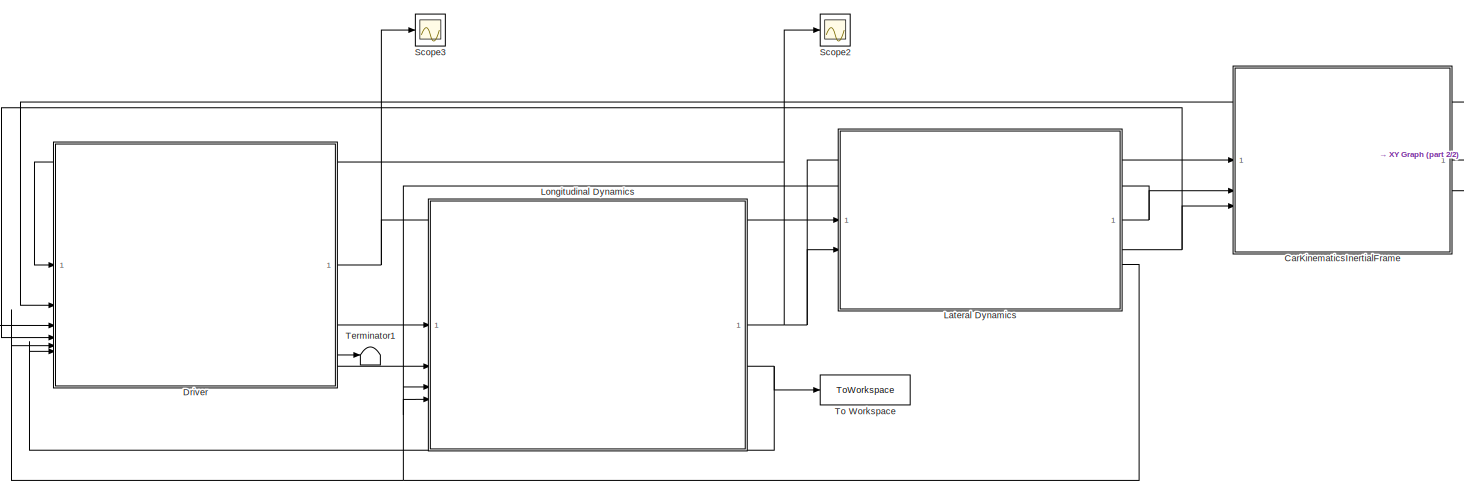
[diagram: root canvas - part 1/2, most of the canvas]
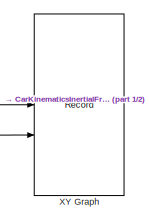
[diagram: root canvas - part 2/2, middle right region]
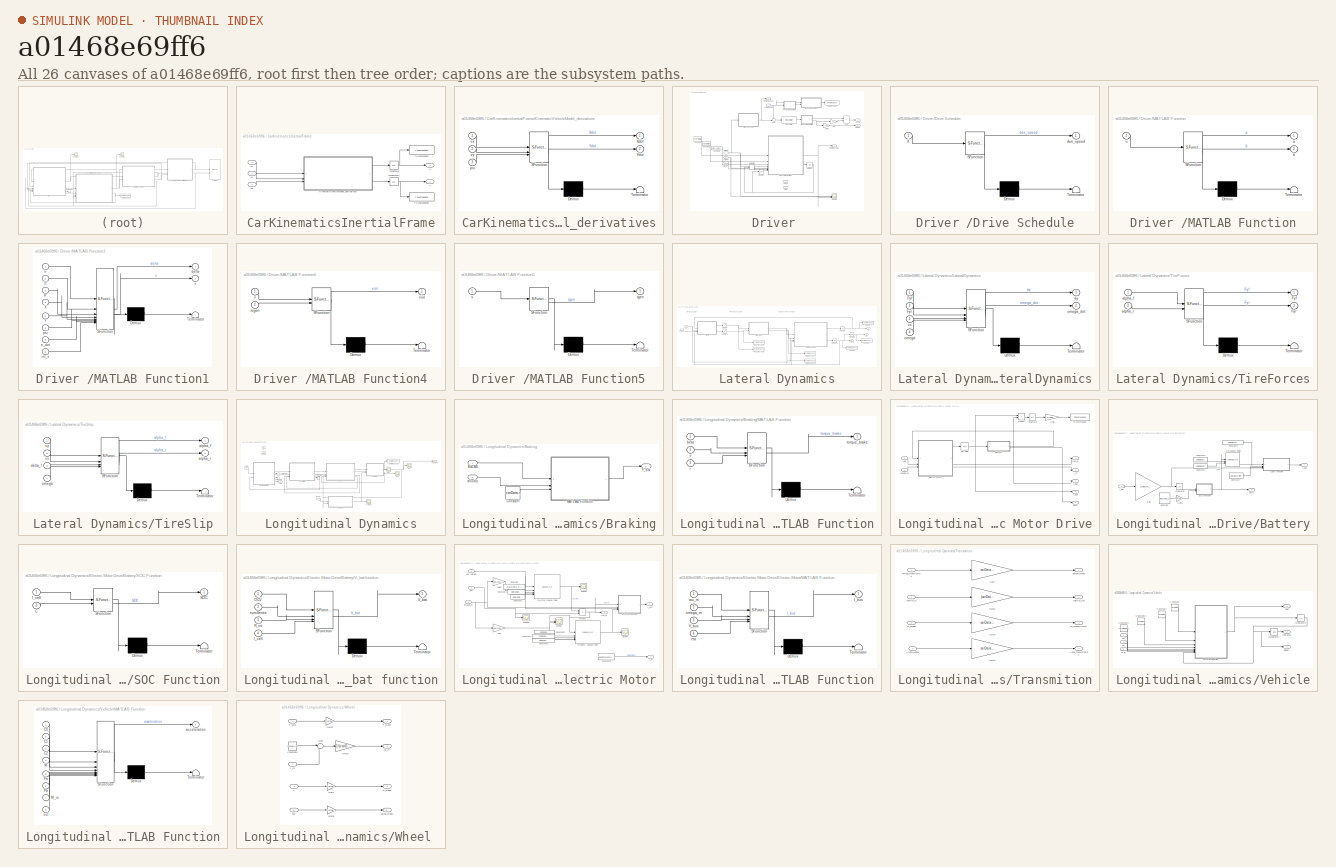
[diagram: thumbnail index - all 26 canvases of the model, root first then tree order]
MODEL slx_a01468e69ff6
KIND model
CONFIG AbsTol = auto
CONFIG EnableMultiTasking = off
CONFIG FixedStep = auto
CONFIG MaxStep = 5.0
CONFIG MinStep = auto
CONFIG RelTol = 1e-3
CONFIG SampleTimeConstraint = Unconstrained
CONFIG SolverName = ode45
CONFIG StartTime = 0.0
CONFIG StopTime = 3600
BLOCK [SubSystem] CarKinematicsInertialFrame
BLOCK [Integrator] CarKinematicsInertialFrame/Integrator
  InitialCondition = carData.init.X0
BLOCK [Integrator] CarKinematicsInertialFrame/Integrator1
  InitialCondition = carData.init.Y0
BLOCK [SubSystem] CarKinematicsInertialFrame/KinematicVehicleModel_derivatives
  ErrorFcn = Stateflow.Translate.translate
  PermitHierarchicalResolution = ExplicitOnly
  SFBlockType = MATLAB Function
  TreatAsAtomicUnit = on
BLOCK [Demux] CarKinematicsInertialFrame/KinematicVehicleModel_derivatives/ Demux 
  Outputs = 1
BLOCK [S-Function] CarKinematicsInertialFrame/KinematicVehicleModel_derivatives/ SFunction 
  EnableBusSupport = on
  FunctionName = sf_sfun
  PortCounts = [3 3]
  SFcnIsStateOwnerBlock = off
  SFunctionDeploymentMode = off
  Tag = Stateflow S-Function 13
BLOCK [Terminator] CarKinematicsInertialFrame/KinematicVehicleModel_derivatives/ Terminator 
BLOCK [Outport] CarKinematicsInertialFrame/KinematicVehicleModel_derivatives/Xdot
BLOCK [Outport] CarKinematicsInertialFrame/KinematicVehicleModel_derivatives/Ydot
  Port = 2
BLOCK [Inport] CarKinematicsInertialFrame/KinematicVehicleModel_derivatives/psi
  Port = 3
BLOCK [Inport] CarKinematicsInertialFrame/KinematicVehicleModel_derivatives/vx
BLOCK [Inport] CarKinematicsInertialFrame/KinematicVehicleModel_derivatives/vy
  Port = 2
BLOCK [ToWorkspace] CarKinematicsInertialFrame/To Workspace
  FixptAsFi = on
  MaxDataPoints = inf
  SampleTime = -1
  SaveFormat = Structure With Time
  VariableName = X
BLOCK [ToWorkspace] CarKinematicsInertialFrame/To Workspace1
  FixptAsFi = on
  MaxDataPoints = inf
  SampleTime = -1
  SaveFormat = Structure With Time
  VariableName = Y
BLOCK [Outport] CarKinematicsInertialFrame/X
BLOCK [Outport] CarKinematicsInertialFrame/Y
  Port = 2
BLOCK [Inport] CarKinematicsInertialFrame/psi
  Port = 3
BLOCK [Inport] CarKinematicsInertialFrame/vx
BLOCK [Inport] CarKinematicsInertialFrame/vy
  Port = 2
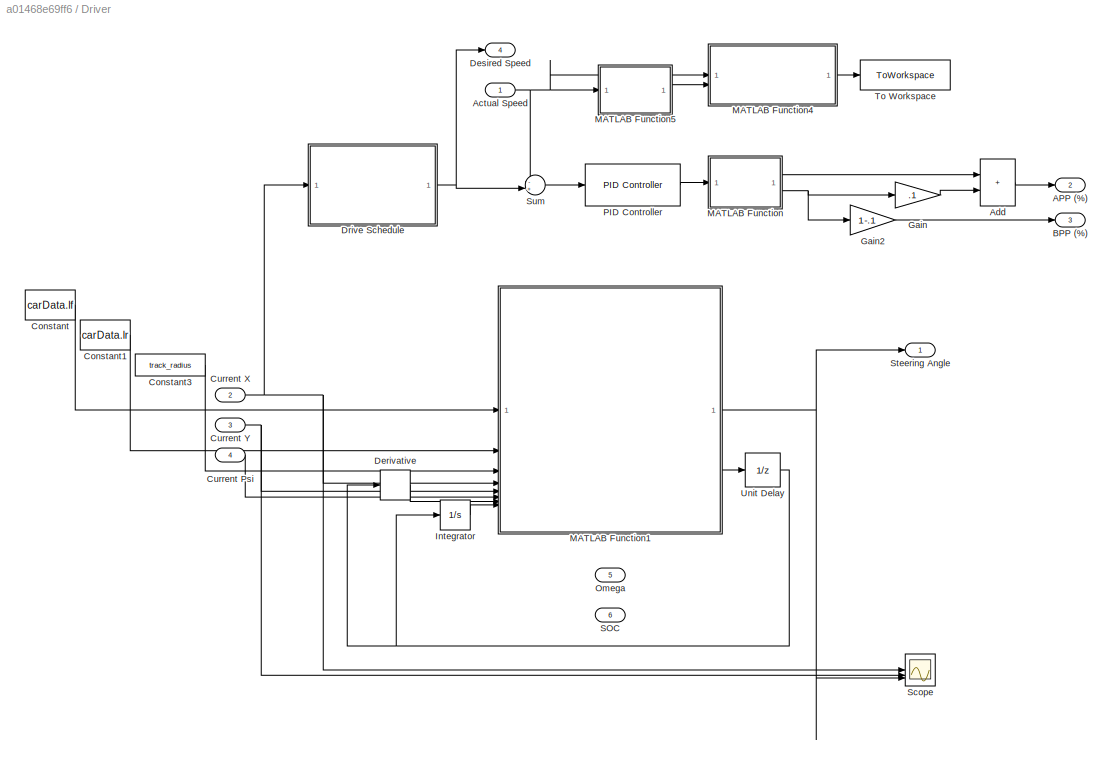
BLOCK [SubSystem] Driver 
BLOCK [Outport] Driver /APP (%)
  Port = 2
BLOCK [Inport] Driver /Actual Speed
BLOCK [Sum] Driver /Add
  IconShape = rectangular
BLOCK [Outport] Driver /BPP (%) 
  Port = 3
BLOCK [Constant] Driver /Constant
  Value = carData.lf
BLOCK [Constant] Driver /Constant1
  Value = carData.lr
BLOCK [Constant] Driver /Constant3
  Value = track_radius
BLOCK [Inport] Driver /Current Psi
  Port = 4
BLOCK [Inport] Driver /Current X
  Port = 2
BLOCK [Inport] Driver /Current Y
  Port = 3
BLOCK [Derivative] Driver /Derivative
BLOCK [Outport] Driver /Desired Speed
  Port = 4
BLOCK [SubSystem] Driver /Drive Schedule
  ErrorFcn = Stateflow.Translate.translate
  PermitHierarchicalResolution = ExplicitOnly
  SFBlockType = MATLAB Function
  TreatAsAtomicUnit = on
BLOCK [Demux] Driver /Drive Schedule/ Demux 
  Outputs = 1
BLOCK [S-Function] Driver /Drive Schedule/ SFunction 
  EnableBusSupport = on
  FunctionName = sf_sfun
  PortCounts = [1 2]
  SFcnIsStateOwnerBlock = off
  SFunctionDeploymentMode = off
  Tag = Stateflow S-Function 9
BLOCK [Terminator] Driver /Drive Schedule/ Terminator 
BLOCK [Inport] Driver /Drive Schedule/X
BLOCK [Outport] Driver /Drive Schedule/des_speed
BLOCK [Gain] Driver /Gain
  Gain = .1
BLOCK [Gain] Driver /Gain2
  Gain = 1-.1
BLOCK [Integrator] Driver /Integrator
BLOCK [SubSystem] Driver /MATLAB Function
  ErrorFcn = Stateflow.Translate.translate
  PermitHierarchicalResolution = ExplicitOnly
  SFBlockType = MATLAB Function
  TreatAsAtomicUnit = on
BLOCK [Demux] Driver /MATLAB Function/ Demux 
  Outputs = 1
BLOCK [S-Function] Driver /MATLAB Function/ SFunction 
  EnableBusSupport = on
  FunctionName = sf_sfun
  PortCounts = [1 3]
  SFcnIsStateOwnerBlock = off
  SFunctionDeploymentMode = off
  Tag = Stateflow S-Function 17
BLOCK [Terminator] Driver /MATLAB Function/ Terminator 
BLOCK [Outport] Driver /MATLAB Function/a
BLOCK [Outport] Driver /MATLAB Function/b
  Port = 2
BLOCK [Inport] Driver /MATLAB Function/u
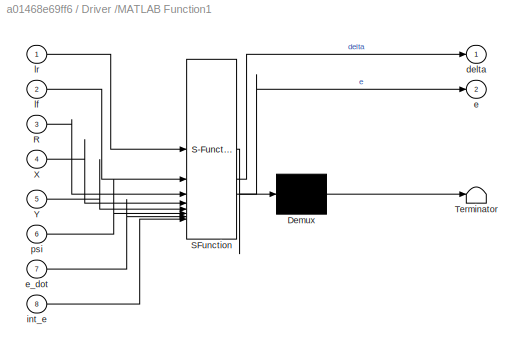
BLOCK [SubSystem] Driver /MATLAB Function1
  ErrorFcn = Stateflow.Translate.translate
  PermitHierarchicalResolution = ExplicitOnly
  SFBlockType = MATLAB Function
  TreatAsAtomicUnit = on
BLOCK [Demux] Driver /MATLAB Function1/ Demux 
  Outputs = 1
BLOCK [S-Function] Driver /MATLAB Function1/ SFunction 
  EnableBusSupport = on
  FunctionName = sf_sfun
  PortCounts = [8 3]
  SFcnIsStateOwnerBlock = off
  SFunctionDeploymentMode = off
  Tag = Stateflow S-Function 4
BLOCK [Terminator] Driver /MATLAB Function1/ Terminator 
BLOCK [Inport] Driver /MATLAB Function1/R
  Port = 3
BLOCK [Inport] Driver /MATLAB Function1/X
  Port = 4
BLOCK [Inport] Driver /MATLAB Function1/Y
  Port = 5
BLOCK [Outport] Driver /MATLAB Function1/delta
BLOCK [Outport] Driver /MATLAB Function1/e
  Port = 2
BLOCK [Inport] Driver /MATLAB Function1/e_dot
  Port = 7
BLOCK [Inport] Driver /MATLAB Function1/int_e
  Port = 8
BLOCK [Inport] Driver /MATLAB Function1/lf
  Port = 2
BLOCK [Inport] Driver /MATLAB Function1/lr
BLOCK [Inport] Driver /MATLAB Function1/psi
  Port = 6
BLOCK [SubSystem] Driver /MATLAB Function4
  ErrorFcn = Stateflow.Translate.translate
  PermitHierarchicalResolution = ExplicitOnly
  SFBlockType = MATLAB Function
  TreatAsAtomicUnit = on
BLOCK [Demux] Driver /MATLAB Function4/ Demux 
  Outputs = 1
BLOCK [S-Function] Driver /MATLAB Function4/ SFunction 
  EnableBusSupport = on
  FunctionName = sf_sfun
  PortCounts = [2 2]
  SFcnIsStateOwnerBlock = off
  SFunctionDeploymentMode = off
  Tag = Stateflow S-Function 11
BLOCK [Terminator] Driver /MATLAB Function4/ Terminator 
BLOCK [Inport] Driver /MATLAB Function4/regen
  Port = 2
BLOCK [Inport] Driver /MATLAB Function4/v
BLOCK [Outport] Driver /MATLAB Function4/viol
BLOCK [SubSystem] Driver /MATLAB Function5
  ErrorFcn = Stateflow.Translate.translate
  PermitHierarchicalResolution = ExplicitOnly
  SFBlockType = MATLAB Function
  TreatAsAtomicUnit = on
BLOCK [Demux] Driver /MATLAB Function5/ Demux 
  Outputs = 1
BLOCK [S-Function] Driver /MATLAB Function5/ SFunction 
  EnableBusSupport = on
  FunctionName = sf_sfun
  PortCounts = [1 2]
  SFcnIsStateOwnerBlock = off
  SFunctionDeploymentMode = off
  Tag = Stateflow S-Function 12
BLOCK [Terminator] Driver /MATLAB Function5/ Terminator 
BLOCK [Outport] Driver /MATLAB Function5/rgen
BLOCK [Inport] Driver /MATLAB Function5/v
BLOCK [Inport] Driver /Omega
  Port = 5
BLOCK [Reference] Driver /PID Controller  REF=slpidlib/PID Controller
  SourceBlock = slpidlib/PID Controller
  SourceType = PID 1dof
BLOCK [Inport] Driver /SOC
  Port = 6
BLOCK [Scope] Driver /Scope
  Floating = off
  NumInputPorts = 3
  ScopeSpecificationString = Simulink.scopes.TimeScopeBlockCfg('CurrentConfiguration', extmgr.ConfigurationSet(extmgr.Configuration('Core','General UI',true),extmgr.Configuration('Core','Source UI',true),extmgr.Configuration('Sources','WiredSimulink',true,'DataLoggingVariableName','ScopeData3'),extmgr.Configuration('Visuals','Time Domain',true,'SerializedDisplays',{struct('MinYLimReal','-366.83855','MaxYLimReal','1266.87312',...<+2834ch>
BLOCK [Outport] Driver /Steering Angle
BLOCK [Sum] Driver /Sum
  Inputs = -+|
BLOCK [ToWorkspace] Driver /To Workspace
  FixptAsFi = on
  MaxDataPoints = inf
  SampleTime = -1
  SaveFormat = Timeseries
  VariableName = F_brk
BLOCK [UnitDelay] Driver /Unit Delay
  HasFrameUpgradeWarning = on
  SampleTime = -1
BLOCK [SubSystem] Lateral Dynamics
BLOCK [ToWorkspace] Lateral Dynamics/Front_Slip_Angle
  FixptAsFi = on
  MaxDataPoints = inf
  SampleTime = -1
  SaveFormat = Timeseries
  VariableName = alpha_f
BLOCK [ToWorkspace] Lateral Dynamics/Heading
  FixptAsFi = on
  MaxDataPoints = inf
  SampleTime = -1
  SaveFormat = Timeseries
  VariableName = psi
BLOCK [Integrator] Lateral Dynamics/Integrator
  InitialCondition = carData.init.vy0
BLOCK [Integrator] Lateral Dynamics/Integrator1
  InitialCondition = carData.init.omega0
BLOCK [Integrator] Lateral Dynamics/Integrator2
  InitialCondition = carData.init.psi0
BLOCK [SubSystem] Lateral Dynamics/LateralDynamics
  ErrorFcn = Stateflow.Translate.translate
  PermitHierarchicalResolution = ExplicitOnly
  SFBlockType = MATLAB Function
  TreatAsAtomicUnit = on
BLOCK [Demux] Lateral Dynamics/LateralDynamics/ Demux 
  Outputs = 1
BLOCK [S-Function] Lateral Dynamics/LateralDynamics/ SFunction 
  EnableBusSupport = on
  FunctionName = sf_sfun
  Parameters = obj
  PortCounts = [4 3]
  SFcnIsStateOwnerBlock = off
  SFunctionDeploymentMode = off
  Tag = Stateflow S-Function 14
BLOCK [Terminator] Lateral Dynamics/LateralDynamics/ Terminator 
BLOCK [Inport] Lateral Dynamics/LateralDynamics/Fyf
BLOCK [Inport] Lateral Dynamics/LateralDynamics/Fyr
  Port = 2
BLOCK [Outport] Lateral Dynamics/LateralDynamics/ay
BLOCK [Inport] Lateral Dynamics/LateralDynamics/omega
  Port = 4
BLOCK [Outport] Lateral Dynamics/LateralDynamics/omega_dot
  Port = 2
BLOCK [Inport] Lateral Dynamics/LateralDynamics/vx
  Port = 3
BLOCK [ToWorkspace] Lateral Dynamics/Rear_Slip_Angle
  FixptAsFi = on
  MaxDataPoints = inf
  SampleTime = -1
  SaveFormat = Timeseries
  VariableName = alpha_r
BLOCK [Saturate] Lateral Dynamics/Saturation
  LowerLimit = -carData.maxAlpha
  UpperLimit = carData.maxAlpha
BLOCK [Saturate] Lateral Dynamics/Saturation1
  LowerLimit = -carData.maxAlpha
  UpperLimit = carData.maxAlpha
BLOCK [SubSystem] Lateral Dynamics/TireForces
  ErrorFcn = Stateflow.Translate.translate
  PermitHierarchicalResolution = ExplicitOnly
  SFBlockType = MATLAB Function
  TreatAsAtomicUnit = on
BLOCK [Demux] Lateral Dynamics/TireForces/ Demux 
  Outputs = 1
BLOCK [S-Function] Lateral Dynamics/TireForces/ SFunction 
  EnableBusSupport = on
  FunctionName = sf_sfun
  Parameters = obj
  PortCounts = [2 3]
  SFcnIsStateOwnerBlock = off
  SFunctionDeploymentMode = off
  Tag = Stateflow S-Function 15
BLOCK [Terminator] Lateral Dynamics/TireForces/ Terminator 
BLOCK [Outport] Lateral Dynamics/TireForces/Fyf
BLOCK [Outport] Lateral Dynamics/TireForces/Fyr
  Port = 2
BLOCK [Inport] Lateral Dynamics/TireForces/alpha_f
BLOCK [Inport] Lateral Dynamics/TireForces/alpha_r
  Port = 2
BLOCK [SubSystem] Lateral Dynamics/TireSlip
  ErrorFcn = Stateflow.Translate.translate
  PermitHierarchicalResolution = ExplicitOnly
  SFBlockType = MATLAB Function
  TreatAsAtomicUnit = on
BLOCK [Demux] Lateral Dynamics/TireSlip/ Demux 
  Outputs = 1
BLOCK [S-Function] Lateral Dynamics/TireSlip/ SFunction 
  EnableBusSupport = on
  FunctionName = sf_sfun
  Parameters = obj
  PortCounts = [4 3]
  SFcnIsStateOwnerBlock = off
  SFunctionDeploymentMode = off
  Tag = Stateflow S-Function 16
BLOCK [Terminator] Lateral Dynamics/TireSlip/ Terminator 
BLOCK [Outport] Lateral Dynamics/TireSlip/alpha_f
BLOCK [Outport] Lateral Dynamics/TireSlip/alpha_r
  Port = 2
BLOCK [Inport] Lateral Dynamics/TireSlip/delta_f
  Port = 3
BLOCK [Inport] Lateral Dynamics/TireSlip/omega
  Port = 4
BLOCK [Inport] Lateral Dynamics/TireSlip/vx
  Port = 2
BLOCK [Inport] Lateral Dynamics/TireSlip/vy
BLOCK [ToWorkspace] Lateral Dynamics/To Workspace5
  FixptAsFi = on
  MaxDataPoints = inf
  SampleTime = -1
  SaveFormat = Timeseries
  VariableName = Fyf
BLOCK [ToWorkspace] Lateral Dynamics/To Workspace6
  FixptAsFi = on
  MaxDataPoints = inf
  SampleTime = -1
  SaveFormat = Timeseries
  VariableName = Fyr
BLOCK [ToWorkspace] Lateral Dynamics/Velocity_Y
  FixptAsFi = on
  MaxDataPoints = inf
  SampleTime = -1
  SaveFormat = Timeseries
  VariableName = vy
BLOCK [ToWorkspace] Lateral Dynamics/Yaw Rate
  FixptAsFi = on
  MaxDataPoints = inf
  SampleTime = -1
  SaveFormat = Timeseries
  VariableName = omega
BLOCK [Inport] Lateral Dynamics/delta_f
BLOCK [Outport] Lateral Dynamics/omega
  Port = 3
BLOCK [Outport] Lateral Dynamics/psi
  Port = 2
BLOCK [Inport] Lateral Dynamics/vx
  Port = 2
BLOCK [Outport] Lateral Dynamics/vy
BLOCK [SubSystem] Longitudinal Dynamics
BLOCK [Inport] Longitudinal Dynamics/APP(%)
BLOCK [Inport] Longitudinal Dynamics/BPP (%)
  Port = 2
BLOCK [SubSystem] Longitudinal Dynamics/Braking
BLOCK [Inport] Longitudinal Dynamics/Braking/BrkCMD 
BLOCK [Constant] Longitudinal Dynamics/Braking/Constant
  Value = carData.r
BLOCK [Outport] Longitudinal Dynamics/Braking/F_brk 
  VectorParamsAs1DForOutWhenUnconnected = off
BLOCK [SubSystem] Longitudinal Dynamics/Braking/MATLAB Function
  ErrorFcn = Stateflow.Translate.translate
  PermitHierarchicalResolution = ExplicitOnly
  SFBlockType = MATLAB Function
  TreatAsAtomicUnit = on
BLOCK [Demux] Longitudinal Dynamics/Braking/MATLAB Function/ Demux 
  Outputs = 1
BLOCK [S-Function] Longitudinal Dynamics/Braking/MATLAB Function/ SFunction 
  EnableBusSupport = on
  FunctionName = sf_sfun
  PortCounts = [3 2]
  SFcnIsStateOwnerBlock = off
  SFunctionDeploymentMode = off
  Tag = Stateflow S-Function 5
BLOCK [Terminator] Longitudinal Dynamics/Braking/MATLAB Function/ Terminator 
BLOCK [Inport] Longitudinal Dynamics/Braking/MATLAB Function/beta
BLOCK [Inport] Longitudinal Dynamics/Braking/MATLAB Function/r
  Port = 3
BLOCK [Outport] Longitudinal Dynamics/Braking/MATLAB Function/torque_brake
BLOCK [Inport] Longitudinal Dynamics/Braking/MATLAB Function/v
  Port = 2
BLOCK [Inport] Longitudinal Dynamics/Braking/velocity 
  Port = 2
BLOCK [SubSystem] Longitudinal Dynamics/Electric Motor Drive
BLOCK [Inport] Longitudinal Dynamics/Electric Motor Drive/APP
BLOCK [SubSystem] Longitudinal Dynamics/Electric Motor Drive/Battery
BLOCK [Lookup_n-D] Longitudinal Dynamics/Electric Motor Drive/Battery/1-D Lookup Table
  BreakpointsForDimension1 = [-5:5]
  BreakpointsForDimension1Source = Input port
  InputPortMap = u0,p221,p5
  InternalRulePriority = Speed
  NumberOfTableDimensions = 1
  RndMeth = Simplest
  Table = tanh([-5:5])
  TableSource = Input port
BLOCK [Constant] Longitudinal Dynamics/Electric Motor Drive/Battery/Constant
  Value = batData.C
BLOCK [Constant] Longitudinal Dynamics/Electric Motor Drive/Battery/Constant1
  Value = batData.SOC
BLOCK [Constant] Longitudinal Dynamics/Electric Motor Drive/Battery/Constant2
  Value = batData.OCV
BLOCK [Constant] Longitudinal Dynamics/Electric Motor Drive/Battery/Constant3
  Value = batData.numSeries
BLOCK [Constant] Longitudinal Dynamics/Electric Motor Drive/Battery/Constant4
  Value = batData.Rint
BLOCK [Gain] Longitudinal Dynamics/Electric Motor Drive/Battery/Gain
  Gain = 1/batData.numParallel
BLOCK [Gain] Longitudinal Dynamics/Electric Motor Drive/Battery/Gain1
  Gain = 3600/batData.numParallel
BLOCK [Inport] Longitudinal Dynamics/Electric Motor Drive/Battery/I_bat
BLOCK [Integrator] Longitudinal Dynamics/Electric Motor Drive/Battery/Integrator
BLOCK [Outport] Longitudinal Dynamics/Electric Motor Drive/Battery/SOC
  Port = 2
BLOCK [SubSystem] Longitudinal Dynamics/Electric Motor Drive/Battery/SOC Function
  ErrorFcn = Stateflow.Translate.translate
  PermitHierarchicalResolution = ExplicitOnly
  SFBlockType = MATLAB Function
  TreatAsAtomicUnit = on
BLOCK [Demux] Longitudinal Dynamics/Electric Motor Drive/Battery/SOC Function/ Demux 
  Outputs = 1
BLOCK [S-Function] Longitudinal Dynamics/Electric Motor Drive/Battery/SOC Function/ SFunction 
  EnableBusSupport = on
  FunctionName = sf_sfun
  PortCounts = [2 2]
  SFcnIsStateOwnerBlock = off
  SFunctionDeploymentMode = off
  Tag = Stateflow S-Function 18
BLOCK [Terminator] Longitudinal Dynamics/Electric Motor Drive/Battery/SOC Function/ Terminator 
BLOCK [Inport] Longitudinal Dynamics/Electric Motor Drive/Battery/SOC Function/C
  Port = 2
BLOCK [Inport] Longitudinal Dynamics/Electric Motor Drive/Battery/SOC Function/I_cell
BLOCK [Outport] Longitudinal Dynamics/Electric Motor Drive/Battery/SOC Function/SOC
BLOCK [Outport] Longitudinal Dynamics/Electric Motor Drive/Battery/V_bat
BLOCK [SubSystem] Longitudinal Dynamics/Electric Motor Drive/Battery/V_bat function
  ErrorFcn = Stateflow.Translate.translate
  PermitHierarchicalResolution = ExplicitOnly
  SFBlockType = MATLAB Function
  TreatAsAtomicUnit = on
BLOCK [Demux] Longitudinal Dynamics/Electric Motor Drive/Battery/V_bat function/ Demux 
  Outputs = 1
BLOCK [S-Function] Longitudinal Dynamics/Electric Motor Drive/Battery/V_bat function/ SFunction 
  EnableBusSupport = on
  FunctionName = sf_sfun
  PortCounts = [4 2]
  SFcnIsStateOwnerBlock = off
  SFunctionDeploymentMode = off
  Tag = Stateflow S-Function 19
BLOCK [Terminator] Longitudinal Dynamics/Electric Motor Drive/Battery/V_bat function/ Terminator 
BLOCK [Inport] Longitudinal Dynamics/Electric Motor Drive/Battery/V_bat function/I_cell
  Port = 4
BLOCK [Inport] Longitudinal Dynamics/Electric Motor Drive/Battery/V_bat function/OCV
BLOCK [Inport] Longitudinal Dynamics/Electric Motor Drive/Battery/V_bat function/R_int
  Port = 3
BLOCK [Outport] Longitudinal Dynamics/Electric Motor Drive/Battery/V_bat function/V_bat
BLOCK [Inport] Longitudinal Dynamics/Electric Motor Drive/Battery/V_bat function/numSeries
  Port = 2
BLOCK [SubSystem] Longitudinal Dynamics/Electric Motor Drive/Electric Motor
BLOCK [Inport] Longitudinal Dynamics/Electric Motor Drive/Electric Motor/APP
  Port = 2
BLOCK [Inport] Longitudinal Dynamics/Electric Motor Drive/Electric Motor/Bus Voltage
BLOCK [Constant] Longitudinal Dynamics/Electric Motor Drive/Electric Motor/Constant
  Value = motorData.maxtorque
BLOCK [Constant] Longitudinal Dynamics/Electric Motor Drive/Electric Motor/Constant1
  Value = motorData.rpm
BLOCK [Constant] Longitudinal Dynamics/Electric Motor Drive/Electric Motor/Constant2
  Value = motorData.vbus
BLOCK [Constant] Longitudinal Dynamics/Electric Motor Drive/Electric Motor/Constant3
  Value = motorData.eta_val
BLOCK [Constant] Longitudinal Dynamics/Electric Motor Drive/Electric Motor/Constant4
  Value = motorData.eta_torque
BLOCK [Constant] Longitudinal Dynamics/Electric Motor Drive/Electric Motor/Constant5
  Value = motorData.eta_speed
BLOCK [Constant] Longitudinal Dynamics/Electric Motor Drive/Electric Motor/Constant6
  Value = motorData.Inertia
BLOCK [Gain] Longitudinal Dynamics/Electric Motor Drive/Electric Motor/Gain
  Gain = 60/(2*pi)
BLOCK [Gain] Longitudinal Dynamics/Electric Motor Drive/Electric Motor/Gain1
  Gain = 60/(2*pi)
BLOCK [Outport] Longitudinal Dynamics/Electric Motor Drive/Electric Motor/I_bus
BLOCK [Outport] Longitudinal Dynamics/Electric Motor Drive/Electric Motor/I_m
  Port = 3
BLOCK [SubSystem] Longitudinal Dynamics/Electric Motor Drive/Electric Motor/MATLAB Function
  ErrorFcn = Stateflow.Translate.translate
  PermitHierarchicalResolution = ExplicitOnly
  SFBlockType = MATLAB Function
  TreatAsAtomicUnit = on
BLOCK [Demux] Longitudinal Dynamics/Electric Motor Drive/Electric Motor/MATLAB Function/ Demux 
  Outputs = 1
BLOCK [S-Function] Longitudinal Dynamics/Electric Motor Drive/Electric Motor/MATLAB Function/ SFunction 
  EnableBusSupport = on
  FunctionName = sf_sfun
  PortCounts = [4 2]
  SFcnIsStateOwnerBlock = off
  SFunctionDeploymentMode = off
  Tag = Stateflow S-Function 20
BLOCK [Terminator] Longitudinal Dynamics/Electric Motor Drive/Electric Motor/MATLAB Function/ Terminator 
BLOCK [Outport] Longitudinal Dynamics/Electric Motor Drive/Electric Motor/MATLAB Function/I_bus
BLOCK [Inport] Longitudinal Dynamics/Electric Motor Drive/Electric Motor/MATLAB Function/V_bus
  Port = 3
BLOCK [Inport] Longitudinal Dynamics/Electric Motor Drive/Electric Motor/MATLAB Function/eta
  Port = 4
BLOCK [Inport] Longitudinal Dynamics/Electric Motor Drive/Electric Motor/MATLAB Function/omega_m
  Port = 2
BLOCK [Inport] Longitudinal Dynamics/Electric Motor Drive/Electric Motor/MATLAB Function/tau_m
BLOCK [Product] Longitudinal Dynamics/Electric Motor Drive/Electric Motor/Product
BLOCK [Scope] Longitudinal Dynamics/Electric Motor Drive/Electric Motor/Scope
  Floating = off
  NumInputPorts = 1
  ScopeSpecificationString = Simulink.scopes.TimeScopeBlockCfg('CurrentConfiguration', extmgr.ConfigurationSet(extmgr.Configuration('Core','General UI',true),extmgr.Configuration('Core','Source UI',true),extmgr.Configuration('Sources','WiredSimulink',true,'DataLoggingVariableName','ScopeData1'),extmgr.Configuration('Visuals','Time Domain',true,'SerializedDisplays',{struct('MinYLimReal','0.72514','MaxYLimReal','0.87372','YLabe...<+1477ch>
BLOCK [Scope] Longitudinal Dynamics/Electric Motor Drive/Electric Motor/Scope1
  Floating = off
  NumInputPorts = 2
  ScopeSpecificationString = Simulink.scopes.TimeScopeBlockCfg('CurrentConfiguration', extmgr.ConfigurationSet(extmgr.Configuration('Core','General UI',true),extmgr.Configuration('Core','Source UI',true),extmgr.Configuration('Sources','WiredSimulink',true,'DataLoggingVariableName','ScopeData2'),extmgr.Configuration('Visuals','Time Domain',true,'SerializedDisplays',{struct('MinYLimReal','-11.91551','MaxYLimReal','107.23963','Y...<+2135ch>
BLOCK [Scope] Longitudinal Dynamics/Electric Motor Drive/Electric Motor/Scope2
  Floating = off
  NumInputPorts = 1
  ScopeSpecificationString = Simulink.scopes.TimeScopeBlockCfg('CurrentConfiguration', extmgr.ConfigurationSet(extmgr.Configuration('Core','General UI',true),extmgr.Configuration('Core','Source UI',true),extmgr.Configuration('Sources','WiredSimulink',true,'DataLoggingVariableName','ScopeData3'),extmgr.Configuration('Visuals','Time Domain',true,'SerializedDisplays',{struct('MinYLimReal','0.1688','MaxYLimReal','0.71293','YLabel...<+1424ch>
BLOCK [Scope] Longitudinal Dynamics/Electric Motor Drive/Electric Motor/Scope3
  Floating = off
  NumInputPorts = 1
  ScopeSpecificationString = Simulink.scopes.TimeScopeBlockCfg('CurrentConfiguration', extmgr.ConfigurationSet(extmgr.Configuration('Core','General UI',true),extmgr.Configuration('Core','Source UI',true),extmgr.Configuration('Sources','WiredSimulink',true,'DataLoggingVariableName','ScopeData4'),extmgr.Configuration('Visuals','Time Domain',true,'SerializedDisplays',{struct('MinYLimReal','180.00000','MaxYLimReal','380.00000','Y...<+1380ch>
BLOCK [Lookup_n-D] Longitudinal Dynamics/Electric Motor Drive/Electric Motor/efficiency Lookup table
  BeginIndexSearchUsingPreviousIndexResult = on
  BreakpointsForDimension1 = [1:3]
  BreakpointsForDimension1Source = Input port
  BreakpointsForDimension2 = [1:3]
  BreakpointsForDimension2Source = Input port
  InputPortMap = u0,u1,p221,p5,p7
  InternalRulePriority = Speed
  RndMeth = Simplest
  TableSource = Input port
BLOCK [Inport] Longitudinal Dynamics/Electric Motor Drive/Electric Motor/omega_m
  Port = 3
BLOCK [Outport] Longitudinal Dynamics/Electric Motor Drive/Electric Motor/tau_m
  Port = 2
BLOCK [Lookup_n-D] Longitudinal Dynamics/Electric Motor Drive/Electric Motor/tau_max Lookup table
  BreakpointsForDimension1 = [1:3]
  BreakpointsForDimension1Source = Input port
  BreakpointsForDimension2 = [1:3]
  BreakpointsForDimension2Source = Input port
  InputPortMap = u0,u1,p221,p5,p7
  InternalRulePriority = Speed
  RndMeth = Simplest
  TableSource = Input port
BLOCK [Gain] Longitudinal Dynamics/Electric Motor Drive/Gain
  Gain = 1/1000
BLOCK [Outport] Longitudinal Dynamics/Electric Motor Drive/I_bat
  Port = 4
BLOCK [Outport] Longitudinal Dynamics/Electric Motor Drive/I_m
  Port = 2
BLOCK [Integrator] Longitudinal Dynamics/Electric Motor Drive/Integrator
BLOCK [Product] Longitudinal Dynamics/Electric Motor Drive/Product
BLOCK [Outport] Longitudinal Dynamics/Electric Motor Drive/SOC
  Port = 5
BLOCK [ToWorkspace] Longitudinal Dynamics/Electric Motor Drive/To Workspace
  FixptAsFi = on
  MaxDataPoints = inf
  SampleTime = -1
  SaveFormat = Timeseries
  VariableName = power
BLOCK [UnitDelay] Longitudinal Dynamics/Electric Motor Drive/Unit Delay
  HasFrameUpgradeWarning = on
  SampleTime = -1
BLOCK [Outport] Longitudinal Dynamics/Electric Motor Drive/V_bat
  Port = 3
BLOCK [Inport] Longitudinal Dynamics/Electric Motor Drive/omega_m
  Port = 2
BLOCK [Outport] Longitudinal Dynamics/Electric Motor Drive/tau_m
BLOCK [Scope] Longitudinal Dynamics/F_brake
  Floating = off
  NumInputPorts = 1
  ScopeSpecificationString = Simulink.scopes.TimeScopeBlockCfg('CurrentConfiguration', extmgr.ConfigurationSet(extmgr.Configuration('Core','General UI',true),extmgr.Configuration('Core','Source UI',true),extmgr.Configuration('Sources','WiredSimulink',true,'DataLoggingVariableName','ScopeData7'),extmgr.Configuration('Visuals','Time Domain',true,'SerializedDisplays',{struct('MinYLimReal','-450.00000','MaxYLimReal','4050.00000',...<+1384ch>
BLOCK [Inport] Longitudinal Dynamics/Omega
  Port = 4
BLOCK [Outport] Longitudinal Dynamics/SOC
  Port = 2
BLOCK [Terminator] Longitudinal Dynamics/Terminator2
BLOCK [Terminator] Longitudinal Dynamics/Terminator3
BLOCK [Terminator] Longitudinal Dynamics/Terminator5
BLOCK [ToWorkspace] Longitudinal Dynamics/To Workspace
  FixptAsFi = on
  MaxDataPoints = inf
  SampleTime = -1
  SaveFormat = Timeseries
  VariableName = vel1
BLOCK [SubSystem] Longitudinal Dynamics/Transmition
BLOCK [Outport] Longitudinal Dynamics/Transmition/Alpha_Transmission
  Port = 4
BLOCK [Inport] Longitudinal Dynamics/Transmition/Alpha_Wheel
  Port = 4
BLOCK [Gain] Longitudinal Dynamics/Transmition/Gain
  Gain = carData.FDG
BLOCK [Gain] Longitudinal Dynamics/Transmition/Gain1
  Gain = (carData.FDG)^2
BLOCK [Gain] Longitudinal Dynamics/Transmition/Gain2
  Gain = carData.FDG
BLOCK [Gain] Longitudinal Dynamics/Transmition/Gain3
  Gain = carData.FDG
BLOCK [Inport] Longitudinal Dynamics/Transmition/Inertia_In
  Port = 2
BLOCK [Outport] Longitudinal Dynamics/Transmition/Inertia_Out
  Port = 2
BLOCK [Inport] Longitudinal Dynamics/Transmition/Torque_Tranmission
BLOCK [Outport] Longitudinal Dynamics/Transmition/Torque_Wheel
BLOCK [Outport] Longitudinal Dynamics/Transmition/W_Transmission
  Port = 3
BLOCK [Inport] Longitudinal Dynamics/Transmition/W_Wheel
  Port = 3
BLOCK [SubSystem] Longitudinal Dynamics/Vehicle
BLOCK [Constant] Longitudinal Dynamics/Vehicle/Constant
  Value = carData.C0
BLOCK [Constant] Longitudinal Dynamics/Vehicle/Constant1
  Value = carData.C1
BLOCK [Constant] Longitudinal Dynamics/Vehicle/Constant2
  Value = carData.C2
BLOCK [Constant] Longitudinal Dynamics/Vehicle/Constant3
  Value = carData.Mass
BLOCK [Outport] Longitudinal Dynamics/Vehicle/Distance 
  Port = 2
  VectorParamsAs1DForOutWhenUnconnected = off
BLOCK [Inport] Longitudinal Dynamics/Vehicle/Fb 
  Port = 3
BLOCK [Inport] Longitudinal Dynamics/Vehicle/Fw 
BLOCK [Integrator] Longitudinal Dynamics/Vehicle/Integrator1
BLOCK [Integrator] Longitudinal Dynamics/Vehicle/Integrator2
  LimitOutput = on
  LowerSaturationLimit = 0
BLOCK [SubSystem] Longitudinal Dynamics/Vehicle/MATLAB Function
  ErrorFcn = Stateflow.Translate.translate
  PermitHierarchicalResolution = ExplicitOnly
  SFBlockType = MATLAB Function
  TreatAsAtomicUnit = on
BLOCK [Demux] Longitudinal Dynamics/Vehicle/MATLAB Function/ Demux 
  Outputs = 1
BLOCK [S-Function] Longitudinal Dynamics/Vehicle/MATLAB Function/ SFunction 
  EnableBusSupport = on
  FunctionName = sf_sfun
  PortCounts = [8 2]
  SFcnIsStateOwnerBlock = off
  SFunctionDeploymentMode = off
  Tag = Stateflow S-Function 21
BLOCK [Terminator] Longitudinal Dynamics/Vehicle/MATLAB Function/ Terminator 
BLOCK [Inport] Longitudinal Dynamics/Vehicle/MATLAB Function/C0
BLOCK [Inport] Longitudinal Dynamics/Vehicle/MATLAB Function/C1
  Port = 2
BLOCK [Inport] Longitudinal Dynamics/Vehicle/MATLAB Function/C2
  Port = 3
BLOCK [Inport] Longitudinal Dynamics/Vehicle/MATLAB Function/Fa
  Port = 5
BLOCK [Inport] Longitudinal Dynamics/Vehicle/MATLAB Function/Fb
  Port = 6
BLOCK [Inport] Longitudinal Dynamics/Vehicle/MATLAB Function/M
  Port = 4
BLOCK [Inport] Longitudinal Dynamics/Vehicle/MATLAB Function/M_in
  Port = 7
BLOCK [Outport] Longitudinal Dynamics/Vehicle/MATLAB Function/acceleration
  VectorParamsAs1DForOutWhenUnconnected = off
BLOCK [Inport] Longitudinal Dynamics/Vehicle/MATLAB Function/vel
  Port = 8
BLOCK [Inport] Longitudinal Dynamics/Vehicle/M_in 
  Port = 2
BLOCK [Outport] Longitudinal Dynamics/Vehicle/acc
  Port = 3
BLOCK [Outport] Longitudinal Dynamics/Vehicle/velocity 
  VectorParamsAs1DForOutWhenUnconnected = off
BLOCK [Outport] Longitudinal Dynamics/Velocity X 
BLOCK [Inport] Longitudinal Dynamics/Vy
  Port = 3
BLOCK [SubSystem] Longitudinal Dynamics/Wheel 
BLOCK [Constant] Longitudinal Dynamics/Wheel /Constant6
  Value = carData.Iw
BLOCK [Outport] Longitudinal Dynamics/Wheel /F_track
BLOCK [Gain] Longitudinal Dynamics/Wheel /Gain
  Gain = 1/carData.r
BLOCK [Gain] Longitudinal Dynamics/Wheel /Gain1
  Gain = 1/carData.r
BLOCK [Gain] Longitudinal Dynamics/Wheel /Gain2
  Gain = 1/carData.r
BLOCK [Gain] Longitudinal Dynamics/Wheel /Gain3
  Gain = 1/(carData.r*carData.r)
BLOCK [Inport] Longitudinal Dynamics/Wheel /I_in
  Port = 2
BLOCK [Outport] Longitudinal Dynamics/Wheel /M_in
  Port = 2
BLOCK [Sum] Longitudinal Dynamics/Wheel /Sum
  Inputs = |++
BLOCK [Inport] Longitudinal Dynamics/Wheel /T_axle
BLOCK [Inport] Longitudinal Dynamics/Wheel /V
  Port = 3
BLOCK [Inport] Longitudinal Dynamics/Wheel /acc
  Port = 4
BLOCK [Outport] Longitudinal Dynamics/Wheel /alpha_wheel
  Port = 4
BLOCK [Outport] Longitudinal Dynamics/Wheel /w_wheel
  Port = 3
BLOCK [Scope] Longitudinal Dynamics/acc
  Floating = off
  NumInputPorts = 1
  ScopeSpecificationString = Simulink.scopes.TimeScopeBlockCfg('CurrentConfiguration', extmgr.ConfigurationSet(extmgr.Configuration('Core','General UI',true),extmgr.Configuration('Core','Source UI',true),extmgr.Configuration('Sources','WiredSimulink',true,'DataLoggingVariableName','ScopeData8'),extmgr.Configuration('Visuals','Time Domain',true,'SerializedDisplays',{struct('MinYLimReal','-12.30056','MaxYLimReal','74.14815','YL...<+1385ch>
BLOCK [Scope] Longitudinal Dynamics/dist
  Floating = off
  NumInputPorts = 1
  ScopeSpecificationString = Simulink.scopes.TimeScopeBlockCfg('CurrentConfiguration', extmgr.ConfigurationSet(extmgr.Configuration('Core','General UI',true),extmgr.Configuration('Core','Source UI',true),extmgr.Configuration('Sources','WiredSimulink',true,'DataLoggingVariableName','ScopeData9'),extmgr.Configuration('Visuals','Time Domain',true,'SerializedDisplays',{struct('MinYLimReal','-385.08236','MaxYLimReal','3465.74126',...<+1386ch>
BLOCK [Scope] Longitudinal Dynamics/vel
  Floating = off
  NumInputPorts = 1
  ScopeSpecificationString = Simulink.scopes.TimeScopeBlockCfg('CurrentConfiguration', extmgr.ConfigurationSet(extmgr.Configuration('Core','General UI',true),extmgr.Configuration('Core','Source UI',true),extmgr.Configuration('Sources','WiredSimulink',true,'DataLoggingVariableName','ScopeData10'),extmgr.Configuration('Visuals','Time Domain',true,'SerializedDisplays',{struct('MinYLimReal','-3.04417','MaxYLimReal','27.39754','YL...<+1408ch>
BLOCK [Scope] Scope2
  Floating = off
  NumInputPorts = 1
  ScopeSpecificationString = Simulink.scopes.TimeScopeBlockCfg('CurrentConfiguration', extmgr.ConfigurationSet(extmgr.Configuration('Core','General UI',true),extmgr.Configuration('Core','Source UI',true),extmgr.Configuration('Sources','WiredSimulink',true,'DataLoggingVariableName','ScopeData1'),extmgr.Configuration('Visuals','Time Domain',true,'SerializedDisplays',{struct('MinYLimReal','6.76744','MaxYLimReal','38.8747','YLabe...<+1439ch>
BLOCK [Scope] Scope3
  Floating = off
  NumInputPorts = 1
  ScopeSpecificationString = Simulink.scopes.TimeScopeBlockCfg('CurrentConfiguration', extmgr.ConfigurationSet(extmgr.Configuration('Core','General UI',true),extmgr.Configuration('Core','Source UI',true),extmgr.Configuration('Sources','WiredSimulink',true,'DataLoggingVariableName','ScopeData2'),extmgr.Configuration('Visuals','Time Domain',true,'SerializedDisplays',{struct('MinYLimReal','-0.00201','MaxYLimReal','0.0169','YLabe...<+1451ch>
BLOCK [Terminator] Terminator1
BLOCK [ToWorkspace] To Workspace
  FixptAsFi = on
  MaxDataPoints = inf
  SampleTime = -1
  SaveFormat = Timeseries
  VariableName = SOC
BLOCK [Record] XY Graph
  CompatibilityTag = XY
  FileSettingsInternal = {"entries":[{"content":{"excelSettings":{"content":{},"type":"Streamout.ExcelSettings"}},"type":"Streamout.FileSettingStorage","uuid":""}],"packageUris":["http:\/\/schema.mathworks.com\/mf0\/streamout_blocks\/R2020a"],"version":"1.0"}
  Layout = [1 1]
  SignalsInternal = {"entries":[{"content":{"signals":[{"content":{"blockPath":[],"dimensions":[1],"domain":"","lineColor":"#fe330a","port":1,"signalID":8,"signalName":"CarKinematicsInertialFrame1:1"},"type":"RecordBlkView.Signal","uuid":""},{"content":{"blockPath":[],"dimensions":[1],"domain":"","lineColor":"#22b573","port":2,"signalID":11,"signalName":"CarKinematicsInertialFrame1:2"},"type":"RecordBlkView.Signal","...<+155ch>
  VisualizationBindings = {"xyplotplugin":{"info":[{"series":[],"subplotID":1}]}}
  st = -1
ANNOTATION Lateral Dynamics: Lateral Dynamic Calculations
ANNOTATION Lateral Dynamics: Tire Force Calculation
ANNOTATION Lateral Dynamics: Tire Slip Calculation
NET CarKinematicsInertialFrame/Integrator1:1 -> CarKinematicsInertialFrame/To Workspace1:1, CarKinematicsInertialFrame/Y:1
NET CarKinematicsInertialFrame/Integrator:1 -> CarKinematicsInertialFrame/To Workspace:1, CarKinematicsInertialFrame/X:1
LINE CarKinematicsInertialFrame/KinematicVehicleModel_derivatives:1 -> CarKinematicsInertialFrame/Integrator:1
LINE CarKinematicsInertialFrame/KinematicVehicleModel_derivatives:2 -> CarKinematicsInertialFrame/Integrator1:1
LINE CarKinematicsInertialFrame/psi:1 -> CarKinematicsInertialFrame/KinematicVehicleModel_derivatives:3
LINE CarKinematicsInertialFrame/vx:1 -> CarKinematicsInertialFrame/KinematicVehicleModel_derivatives:1
LINE CarKinematicsInertialFrame/vy:1 -> CarKinematicsInertialFrame/KinematicVehicleModel_derivatives:2
NET CarKinematicsInertialFrame:1 -> Driver :2, XY Graph:1
NET CarKinematicsInertialFrame:2 -> Driver :3, XY Graph:2
NET Driver /Actual Speed:1 -> Driver /MATLAB Function4:1, Driver /MATLAB Function5:1, Driver /Sum:1
LINE Driver /Add:1 -> Driver /APP (%):1
LINE Driver /Constant1:1 -> Driver /MATLAB Function1:2
LINE Driver /Constant3:1 -> Driver /MATLAB Function1:3
LINE Driver /Constant:1 -> Driver /MATLAB Function1:1
LINE Driver /Current Psi:1 -> Driver /MATLAB Function1:6
NET Driver /Current X:1 -> Driver /Drive Schedule:1, Driver /MATLAB Function1:4, Driver /Scope:1
NET Driver /Current Y:1 -> Driver /MATLAB Function1:5, Driver /Scope:2
LINE Driver /Derivative:1 -> Driver /MATLAB Function1:7
NET Driver /Drive Schedule:1 -> Driver /Desired Speed:1, Driver /Sum:2
LINE Driver /Gain2:1 -> Driver /BPP (%) :1
LINE Driver /Gain:1 -> Driver /Add:2
LINE Driver /Integrator:1 -> Driver /MATLAB Function1:8
NET Driver /MATLAB Function1:1 -> Driver /Scope:3, Driver /Steering Angle:1
LINE Driver /MATLAB Function1:2 -> Driver /Unit Delay:1
LINE Driver /MATLAB Function4:1 -> Driver /To Workspace:1
LINE Driver /MATLAB Function5:1 -> Driver /MATLAB Function4:2
LINE Driver /MATLAB Function:1 -> Driver /Add:1
NET Driver /MATLAB Function:2 -> Driver /Gain2:1, Driver /Gain:1
LINE Driver /PID Controller:1 -> Driver /MATLAB Function:1
LINE Driver /Sum:1 -> Driver /PID Controller:1
NET Driver /Unit Delay:1 -> Driver /Derivative:1, Driver /Integrator:1
NET Driver :1 -> Lateral Dynamics:1, Scope3:1
LINE Driver :2 -> Longitudinal Dynamics:1
LINE Driver :3 -> Longitudinal Dynamics:2
LINE Driver :4 -> Terminator1:1
NET Lateral Dynamics/Integrator1:1 -> Lateral Dynamics/Integrator2:1, Lateral Dynamics/LateralDynamics:4, Lateral Dynamics/TireSlip:4, Lateral Dynamics/Yaw Rate:1, Lateral Dynamics/omega:1
NET Lateral Dynamics/Integrator2:1 -> Lateral Dynamics/Heading:1, Lateral Dynamics/psi:1
NET Lateral Dynamics/Integrator:1 -> Lateral Dynamics/TireSlip:1, Lateral Dynamics/Velocity_Y:1, Lateral Dynamics/vy:1
LINE Lateral Dynamics/LateralDynamics:1 -> Lateral Dynamics/Integrator:1
LINE Lateral Dynamics/LateralDynamics:2 -> Lateral Dynamics/Integrator1:1
NET Lateral Dynamics/Saturation1:1 -> Lateral Dynamics/Rear_Slip_Angle:1, Lateral Dynamics/TireForces:2
NET Lateral Dynamics/Saturation:1 -> Lateral Dynamics/Front_Slip_Angle:1, Lateral Dynamics/TireForces:1
NET Lateral Dynamics/TireForces:1 -> Lateral Dynamics/LateralDynamics:1, Lateral Dynamics/To Workspace5:1
NET Lateral Dynamics/TireForces:2 -> Lateral Dynamics/LateralDynamics:2, Lateral Dynamics/To Workspace6:1
LINE Lateral Dynamics/TireSlip:1 -> Lateral Dynamics/Saturation:1
LINE Lateral Dynamics/TireSlip:2 -> Lateral Dynamics/Saturation1:1
LINE Lateral Dynamics/delta_f:1 -> Lateral Dynamics/TireSlip:3
NET Lateral Dynamics/vx:1 -> Lateral Dynamics/LateralDynamics:3, Lateral Dynamics/TireSlip:2
NET Lateral Dynamics:1 -> CarKinematicsInertialFrame:2, Longitudinal Dynamics:3
NET Lateral Dynamics:2 -> CarKinematicsInertialFrame:3, Driver :4
NET Lateral Dynamics:3 -> Driver :5, Longitudinal Dynamics:4
LINE Longitudinal Dynamics/APP(%):1 -> Longitudinal Dynamics/Electric Motor Drive:1
LINE Longitudinal Dynamics/BPP (%):1 -> Longitudinal Dynamics/Braking:1
LINE Longitudinal Dynamics/Braking/BrkCMD :1 -> Longitudinal Dynamics/Braking/MATLAB Function:1
LINE Longitudinal Dynamics/Braking/Constant:1 -> Longitudinal Dynamics/Braking/MATLAB Function:3
LINE Longitudinal Dynamics/Braking/MATLAB Function:1 -> Longitudinal Dynamics/Braking/F_brk :1
LINE Longitudinal Dynamics/Braking/velocity :1 -> Longitudinal Dynamics/Braking/MATLAB Function:2
NET Longitudinal Dynamics/Braking:1 -> Longitudinal Dynamics/F_brake:1, Longitudinal Dynamics/Vehicle:3
LINE Longitudinal Dynamics/Electric Motor Drive/APP:1 -> Longitudinal Dynamics/Electric Motor Drive/Electric Motor:2
LINE Longitudinal Dynamics/Electric Motor Drive/Battery/1-D Lookup Table:1 -> Longitudinal Dynamics/Electric Motor Drive/Battery/V_bat function:1
LINE Longitudinal Dynamics/Electric Motor Drive/Battery/Constant1:1 -> Longitudinal Dynamics/Electric Motor Drive/Battery/1-D Lookup Table:3
LINE Longitudinal Dynamics/Electric Motor Drive/Battery/Constant2:1 -> Longitudinal Dynamics/Electric Motor Drive/Battery/1-D Lookup Table:2
LINE Longitudinal Dynamics/Electric Motor Drive/Battery/Constant3:1 -> Longitudinal Dynamics/Electric Motor Drive/Battery/V_bat function:2
LINE Longitudinal Dynamics/Electric Motor Drive/Battery/Constant4:1 -> Longitudinal Dynamics/Electric Motor Drive/Battery/V_bat function:3
LINE Longitudinal Dynamics/Electric Motor Drive/Battery/Constant:1 -> Longitudinal Dynamics/Electric Motor Drive/Battery/Gain1:1
LINE Longitudinal Dynamics/Electric Motor Drive/Battery/Gain1:1 -> Longitudinal Dynamics/Electric Motor Drive/Battery/SOC Function:2
NET Longitudinal Dynamics/Electric Motor Drive/Battery/Gain:1 -> Longitudinal Dynamics/Electric Motor Drive/Battery/Integrator:1, Longitudinal Dynamics/Electric Motor Drive/Battery/V_bat function:4
LINE Longitudinal Dynamics/Electric Motor Drive/Battery/I_bat:1 -> Longitudinal Dynamics/Electric Motor Drive/Battery/Gain:1
LINE Longitudinal Dynamics/Electric Motor Drive/Battery/Integrator:1 -> Longitudinal Dynamics/Electric Motor Drive/Battery/SOC Function:1
NET Longitudinal Dynamics/Electric Motor Drive/Battery/SOC Function:1 -> Longitudinal Dynamics/Electric Motor Drive/Battery/1-D Lookup Table:1, Longitudinal Dynamics/Electric Motor Drive/Battery/SOC:1
LINE Longitudinal Dynamics/Electric Motor Drive/Battery/V_bat function:1 -> Longitudinal Dynamics/Electric Motor Drive/Battery/V_bat:1
NET Longitudinal Dynamics/Electric Motor Drive/Battery:1 -> Longitudinal Dynamics/Electric Motor Drive/Electric Motor:1, Longitudinal Dynamics/Electric Motor Drive/Product:2, Longitudinal Dynamics/Electric Motor Drive/V_bat:1
LINE Longitudinal Dynamics/Electric Motor Drive/Battery:2 -> Longitudinal Dynamics/Electric Motor Drive/SOC:1
NET Longitudinal Dynamics/Electric Motor Drive/Electric Motor/APP:1 -> Longitudinal Dynamics/Electric Motor Drive/Electric Motor/Product:2, Longitudinal Dynamics/Electric Motor Drive/Electric Motor/Scope2:1
NET Longitudinal Dynamics/Electric Motor Drive/Electric Motor/Bus Voltage:1 -> Longitudinal Dynamics/Electric Motor Drive/Electric Motor/MATLAB Function:3, Longitudinal Dynamics/Electric Motor Drive/Electric Motor/tau_max Lookup table:1
LINE Longitudinal Dynamics/Electric Motor Drive/Electric Motor/Constant1:1 -> Longitudinal Dynamics/Electric Motor Drive/Electric Motor/tau_max Lookup table:5
LINE Longitudinal Dynamics/Electric Motor Drive/Electric Motor/Constant2:1 -> Longitudinal Dynamics/Electric Motor Drive/Electric Motor/tau_max Lookup table:4
LINE Longitudinal Dynamics/Electric Motor Drive/Electric Motor/Constant3:1 -> Longitudinal Dynamics/Electric Motor Drive/Electric Motor/efficiency Lookup table:3
LINE Longitudinal Dynamics/Electric Motor Drive/Electric Motor/Constant4:1 -> Longitudinal Dynamics/Electric Motor Drive/Electric Motor/efficiency Lookup table:4
LINE Longitudinal Dynamics/Electric Motor Drive/Electric Motor/Constant5:1 -> Longitudinal Dynamics/Electric Motor Drive/Electric Motor/efficiency Lookup table:5
LINE Longitudinal Dynamics/Electric Motor Drive/Electric Motor/Constant6:1 -> Longitudinal Dynamics/Electric Motor Drive/Electric Motor/I_m:1
LINE Longitudinal Dynamics/Electric Motor Drive/Electric Motor/Constant:1 -> Longitudinal Dynamics/Electric Motor Drive/Electric Motor/tau_max Lookup table:3
LINE Longitudinal Dynamics/Electric Motor Drive/Electric Motor/Gain1:1 -> Longitudinal Dynamics/Electric Motor Drive/Electric Motor/tau_max Lookup table:2
NET Longitudinal Dynamics/Electric Motor Drive/Electric Motor/Gain:1 -> Longitudinal Dynamics/Electric Motor Drive/Electric Motor/Scope1:2, Longitudinal Dynamics/Electric Motor Drive/Electric Motor/efficiency Lookup table:2
LINE Longitudinal Dynamics/Electric Motor Drive/Electric Motor/MATLAB Function:1 -> Longitudinal Dynamics/Electric Motor Drive/Electric Motor/I_bus:1
NET Longitudinal Dynamics/Electric Motor Drive/Electric Motor/Product:1 -> Longitudinal Dynamics/Electric Motor Drive/Electric Motor/MATLAB Function:1, Longitudinal Dynamics/Electric Motor Drive/Electric Motor/Scope1:1, Longitudinal Dynamics/Electric Motor Drive/Electric Motor/efficiency Lookup table:1, Longitudinal Dynamics/Electric Motor Drive/Electric Motor/tau_m:1
NET Longitudinal Dynamics/Electric Motor Drive/Electric Motor/efficiency Lookup table:1 -> Longitudinal Dynamics/Electric Motor Drive/Electric Motor/MATLAB Function:4, Longitudinal Dynamics/Electric Motor Drive/Electric Motor/Scope:1
NET Longitudinal Dynamics/Electric Motor Drive/Electric Motor/omega_m:1 -> Longitudinal Dynamics/Electric Motor Drive/Electric Motor/Gain1:1, Longitudinal Dynamics/Electric Motor Drive/Electric Motor/Gain:1, Longitudinal Dynamics/Electric Motor Drive/Electric Motor/MATLAB Function:2
NET Longitudinal Dynamics/Electric Motor Drive/Electric Motor/tau_max Lookup table:1 -> Longitudinal Dynamics/Electric Motor Drive/Electric Motor/Product:1, Longitudinal Dynamics/Electric Motor Drive/Electric Motor/Scope3:1
LINE Longitudinal Dynamics/Electric Motor Drive/Electric Motor:1 -> Longitudinal Dynamics/Electric Motor Drive/Unit Delay:1
LINE Longitudinal Dynamics/Electric Motor Drive/Electric Motor:2 -> Longitudinal Dynamics/Electric Motor Drive/tau_m:1
LINE Longitudinal Dynamics/Electric Motor Drive/Electric Motor:3 -> Longitudinal Dynamics/Electric Motor Drive/I_m:1
LINE Longitudinal Dynamics/Electric Motor Drive/Gain:1 -> Longitudinal Dynamics/Electric Motor Drive/To Workspace:1
LINE Longitudinal Dynamics/Electric Motor Drive/Integrator:1 -> Longitudinal Dynamics/Electric Motor Drive/Gain:1
LINE Longitudinal Dynamics/Electric Motor Drive/Product:1 -> Longitudinal Dynamics/Electric Motor Drive/Integrator:1
NET Longitudinal Dynamics/Electric Motor Drive/Unit Delay:1 -> Longitudinal Dynamics/Electric Motor Drive/Battery:1, Longitudinal Dynamics/Electric Motor Drive/I_bat:1, Longitudinal Dynamics/Electric Motor Drive/Product:1
LINE Longitudinal Dynamics/Electric Motor Drive/omega_m:1 -> Longitudinal Dynamics/Electric Motor Drive/Electric Motor:3
LINE Longitudinal Dynamics/Electric Motor Drive:1 -> Longitudinal Dynamics/Transmition:1
LINE Longitudinal Dynamics/Electric Motor Drive:2 -> Longitudinal Dynamics/Transmition:2
LINE Longitudinal Dynamics/Electric Motor Drive:3 -> Longitudinal Dynamics/Terminator3:1
LINE Longitudinal Dynamics/Electric Motor Drive:4 -> Longitudinal Dynamics/Terminator2:1
LINE Longitudinal Dynamics/Electric Motor Drive:5 -> Longitudinal Dynamics/SOC:1
LINE Longitudinal Dynamics/Transmition/Alpha_Wheel:1 -> Longitudinal Dynamics/Transmition/Gain3:1
LINE Longitudinal Dynamics/Transmition/Gain1:1 -> Longitudinal Dynamics/Transmition/Inertia_Out:1
LINE Longitudinal Dynamics/Transmition/Gain2:1 -> Longitudinal Dynamics/Transmition/W_Transmission:1
LINE Longitudinal Dynamics/Transmition/Gain3:1 -> Longitudinal Dynamics/Transmition/Alpha_Transmission:1
LINE Longitudinal Dynamics/Transmition/Gain:1 -> Longitudinal Dynamics/Transmition/Torque_Wheel:1
LINE Longitudinal Dynamics/Transmition/Inertia_In:1 -> Longitudinal Dynamics/Transmition/Gain1:1
LINE Longitudinal Dynamics/Transmition/Torque_Tranmission:1 -> Longitudinal Dynamics/Transmition/Gain:1
LINE Longitudinal Dynamics/Transmition/W_Wheel:1 -> Longitudinal Dynamics/Transmition/Gain2:1
LINE Longitudinal Dynamics/Transmition:1 -> Longitudinal Dynamics/Wheel :1
LINE Longitudinal Dynamics/Transmition:2 -> Longitudinal Dynamics/Wheel :2
LINE Longitudinal Dynamics/Transmition:3 -> Longitudinal Dynamics/Electric Motor Drive:2
LINE Longitudinal Dynamics/Transmition:4 -> Longitudinal Dynamics/Terminator5:1
LINE Longitudinal Dynamics/Vehicle/Constant1:1 -> Longitudinal Dynamics/Vehicle/MATLAB Function:2
LINE Longitudinal Dynamics/Vehicle/Constant2:1 -> Longitudinal Dynamics/Vehicle/MATLAB Function:3
LINE Longitudinal Dynamics/Vehicle/Constant3:1 -> Longitudinal Dynamics/Vehicle/MATLAB Function:4
LINE Longitudinal Dynamics/Vehicle/Constant:1 -> Longitudinal Dynamics/Vehicle/MATLAB Function:1
LINE Longitudinal Dynamics/Vehicle/Fb :1 -> Longitudinal Dynamics/Vehicle/MATLAB Function:6
LINE Longitudinal Dynamics/Vehicle/Fw :1 -> Longitudinal Dynamics/Vehicle/MATLAB Function:5
LINE Longitudinal Dynamics/Vehicle/Integrator1:1 -> Longitudinal Dynamics/Vehicle/Distance :1
NET Longitudinal Dynamics/Vehicle/Integrator2:1 -> Longitudinal Dynamics/Vehicle/Integrator1:1, Longitudinal Dynamics/Vehicle/MATLAB Function:8, Longitudinal Dynamics/Vehicle/velocity :1
NET Longitudinal Dynamics/Vehicle/MATLAB Function:1 -> Longitudinal Dynamics/Vehicle/Integrator2:1, Longitudinal Dynamics/Vehicle/acc:1
LINE Longitudinal Dynamics/Vehicle/M_in :1 -> Longitudinal Dynamics/Vehicle/MATLAB Function:7
NET Longitudinal Dynamics/Vehicle:1 -> Longitudinal Dynamics/Braking:2, Longitudinal Dynamics/To Workspace:1, Longitudinal Dynamics/Velocity X :1, Longitudinal Dynamics/Wheel :3, Longitudinal Dynamics/vel:1
LINE Longitudinal Dynamics/Vehicle:2 -> Longitudinal Dynamics/dist:1
NET Longitudinal Dynamics/Vehicle:3 -> Longitudinal Dynamics/Wheel :4, Longitudinal Dynamics/acc:1
LINE Longitudinal Dynamics/Wheel /Constant6:1 -> Longitudinal Dynamics/Wheel /Sum:1
LINE Longitudinal Dynamics/Wheel /Gain1:1 -> Longitudinal Dynamics/Wheel /alpha_wheel:1
LINE Longitudinal Dynamics/Wheel /Gain2:1 -> Longitudinal Dynamics/Wheel /F_track:1
LINE Longitudinal Dynamics/Wheel /Gain3:1 -> Longitudinal Dynamics/Wheel /M_in:1
LINE Longitudinal Dynamics/Wheel /Gain:1 -> Longitudinal Dynamics/Wheel /w_wheel:1
LINE Longitudinal Dynamics/Wheel /I_in:1 -> Longitudinal Dynamics/Wheel /Sum:2
LINE Longitudinal Dynamics/Wheel /Sum:1 -> Longitudinal Dynamics/Wheel /Gain3:1
LINE Longitudinal Dynamics/Wheel /T_axle:1 -> Longitudinal Dynamics/Wheel /Gain2:1
LINE Longitudinal Dynamics/Wheel /V:1 -> Longitudinal Dynamics/Wheel /Gain:1
LINE Longitudinal Dynamics/Wheel /acc:1 -> Longitudinal Dynamics/Wheel /Gain1:1
LINE Longitudinal Dynamics/Wheel :1 -> Longitudinal Dynamics/Vehicle:1
LINE Longitudinal Dynamics/Wheel :2 -> Longitudinal Dynamics/Vehicle:2
LINE Longitudinal Dynamics/Wheel :3 -> Longitudinal Dynamics/Transmition:3
LINE Longitudinal Dynamics/Wheel :4 -> Longitudinal Dynamics/Transmition:4
NET Longitudinal Dynamics:1 -> CarKinematicsInertialFrame:1, Driver :1, Lateral Dynamics:2, Scope2:1
NET Longitudinal Dynamics:2 -> Driver :6, To Workspace:1
note: NET lines group one-source signal fan-out (src -> all destinations, sorted); 1:1 wires keep LINE
CHART Lateral Dynamics/TireSlip states=1 transitions=1
  STATE_LABEL 'eML_blk_kernel()'
  STATE_LABEL 'SCRIPT:\nfunction [alpha_f, alpha_r] = fcn(vy,  vx, delta_f, omega, obj)\n\n\nif abs(vx)> obj.vx_threshold1\n      alpha_f = delta_f - (vy + omega * obj.lf) / vx;\n      alpha_r = - (vy - omega * obj.lr) / vx;\nelse\n      alpha_f = 0;\n      alpha_r = 0;\nend\n\n\n\nend'
CHART Driver
/MATLAB Function states=1 transitions=1
  STATE_LABEL 'eML_blk_kernel()'
  STATE_LABEL 'SCRIPT:\nfunction [a,b] = fcn( u)\n\nif u>0\n    acc=u;\n    brk=0;\nelseif u<0\n    acc=0;\n    brk=-u;\nelse\n    acc=0;\n    brk=0;\nend\na= acc;\nb= brk;\n\n\n'
CHART Longitudinal Dynamics/Electric Motor Drive/Battery/SOC Function states=1 transitions=1
  STATE_LABEL 'eML_blk_kernel()'
  STATE_LABEL 'SCRIPT:\nfunction SOC= fcn(I_cell,C)\n\nSOC = .8-I_cell/C;\n\n'
CHART Longitudinal Dynamics/Electric Motor Drive/Battery/V_bat function states=1 transitions=1
  STATE_LABEL 'eML_blk_kernel()'
  STATE_LABEL 'SCRIPT:\nfunction V_bat = fcn(OCV, numSeries, R_int, I_cell)\n\nV_bat = numSeries * (OCV - R_int * I_cell);\n'
CHART Longitudinal Dynamics/Electric Motor Drive/Electric Motor/MATLAB Function states=1 transitions=1
  STATE_LABEL 'eML_blk_kernel()'
  STATE_LABEL "SCRIPT:\nfunction I_bus = fcn(tau_m,omega_m,V_bus,eta)\n\n% disp('tau_m');\n% disp(tau_m);\n% disp('omega');\n% disp(omega_m);\n\n\nPm = tau_m * omega_m;\n\n% disp('Pm');\n% disp(Pm);\n% disp('eta');\n% disp(eta);\n% disp('exp');\n% disp(Pm/(abs(Pm)+.001));\n\n\nPe = Pm * (eta ^ complex(Pm/(abs(Pm)+.001)));\nI_bus = real(Pe)/V_bus;"
CHART Longitudinal Dynamics/Vehicle/MATLAB Function states=1 transitions=1
  STATE_LABEL 'eML_blk_kernel()'
  STATE_LABEL 'SCRIPT:\nfunction acceleration   = vehicle(C0,C1,C2,M,Fa,Fb,M_in, vel)\n\nacceleration = (((Fa-Fb))-(C0+ C1*vel + C2*(vel)^2))/(M+M_in);\n'
CHART Driver
/MATLAB Function1 states=1 transitions=1
  STATE_LABEL 'eML_blk_kernel()'
  STATE_LABEL 'SCRIPT:\nfunction [delta, e] = SimplestDriver(lr, lf, R, X, Y, psi, e_dot, int_e)\n\n% Look Ahead Distance\nl = 5;\n\n% PID Coefficients\nkp = .0016;\nkd = 0;\nki = 0;\nif X > 900\n    theta = atan(200-Y/X-900);\n    eta = l/R;\n    psi_desired = psi+theta;\n    e = psi - psi_desired;\n    PID = kp*e + kd*e_dot + ki*int_e;\n    delta = PID + (lr+lf)/R;\nelseif X < 0\n    theta = atan(200-Y/X - 900);\n    eta = l/R;\n...<+624ch>'
CHART Longitudinal Dynamics/Braking/MATLAB Function states=1 transitions=1
  STATE_LABEL 'eML_blk_kernel()'
  STATE_LABEL 'SCRIPT:\n\nfunction torque_brake = torque_brake(beta,v,r)\nif beta == 0\n    torque_brake = 0;\nelse\n    torque_brake = beta * 10000 * (v / abs(v)+0.001) /r;\nend'
CHART Driver
/Drive Schedule states=1 transitions=1
  STATE_LABEL 'eML_blk_kernel()'
  STATE_LABEL 'SCRIPT:\nfunction des_speed = fcn(X)\n\nif X > 0  && X <15 || X < 900 && X > 885 % Slowing Down\n    des_speed = 18; % 20\n\nelseif X <= 885 && X >= 15 % Straights\n    des_speed = 35; %36\nelse % Curves\n    des_speed = 10; %10\nend\n\n'
CHART Driver
/MATLAB Function4 states=1 transitions=1
  STATE_LABEL 'eML_blk_kernel()'
  STATE_LABEL 'SCRIPT:\nfunction viol = violfcn(v, regen)\n    speed = (3600/1600)*v;\n    if speed < 5\n        regen_vio = 0;\n        if regen == regen_vio\n            viol = 0;\n        else\n            viol = 1;\n        end\n\n    elseif speed == 25\n        regen_vio = 0.95;\n        if regen == regen_vio\n            viol = 0;\n        else\n            viol = 1;\n        end\n\n    elseif v > 25\n        regen_vio = 0.95...<+264ch>'
CHART Driver
/MATLAB Function5 states=1 transitions=1
  STATE_LABEL 'eML_blk_kernel()'
  STATE_LABEL 'SCRIPT:\nfunction rgen = fcn(v)\nif v <= 5\n    rgen = 0;\n  \nelseif v > 5\n    rgen = 0.0475 * (v-5);\n    \nelse\n    rgen = .95;\n    \nend\n'
CHART CarKinematicsInertialFrame/KinematicVehicleModel_derivatives states=1 transitions=1
  STATE_LABEL 'eML_blk_kernel()'
  STATE_LABEL 'SCRIPT:\nfunction [Xdot, Ydot] = fcn(vx, vy, psi)\n    temp = TF(psi) * [vx;vy]; \n    Xdot = temp(1);\n    Ydot = temp(2);\n  \nend\n\nfunction y = TF(psi)\n    y = [cos(psi), -sin(psi); sin(psi), cos(psi)];\nend'
CHART Lateral Dynamics/LateralDynamics states=1 transitions=1
  STATE_LABEL 'eML_blk_kernel()'
  STATE_LABEL 'SCRIPT:\nfunction [ay, omega_dot] = fcn(Fyf, Fyr, vx, omega, obj)\n\nFy = Fyf + Fyr;\nay = Fy / obj.Mass - omega * vx;\n        \nM  = Fyf * obj.lf - Fyr * obj.lr;        \nomega_dot = M / obj.Inertia;        \n\nend'
CHART Lateral Dynamics/TireForces states=1 transitions=1
  STATE_LABEL 'eML_blk_kernel()'
  STATE_LABEL 'SCRIPT:\nfunction [Fyf, Fyr] = fcn(alpha_f, alpha_r, obj)\n\nFyf = min(obj.Fyfmax,obj.Calpha_f * alpha_f);\nFyr = min(obj.Fyrmax, obj.Calpha_r * alpha_r);\nend'
CHART  states=0 transitions=0
CHART  states=0 transitions=0
CHART  states=0 transitions=0
CHART  states=0 transitions=0
CHART  states=0 transitions=0
CHART  states=0 transitions=0
CHART  states=0 transitions=0
CHART  states=0 transitions=0
CHART  states=0 transitions=0
CHART  states=0 transitions=0
CHART  states=0 transitions=0
CHART  states=0 transitions=0
CHART  states=0 transitions=0
CHART  states=0 transitions=0
